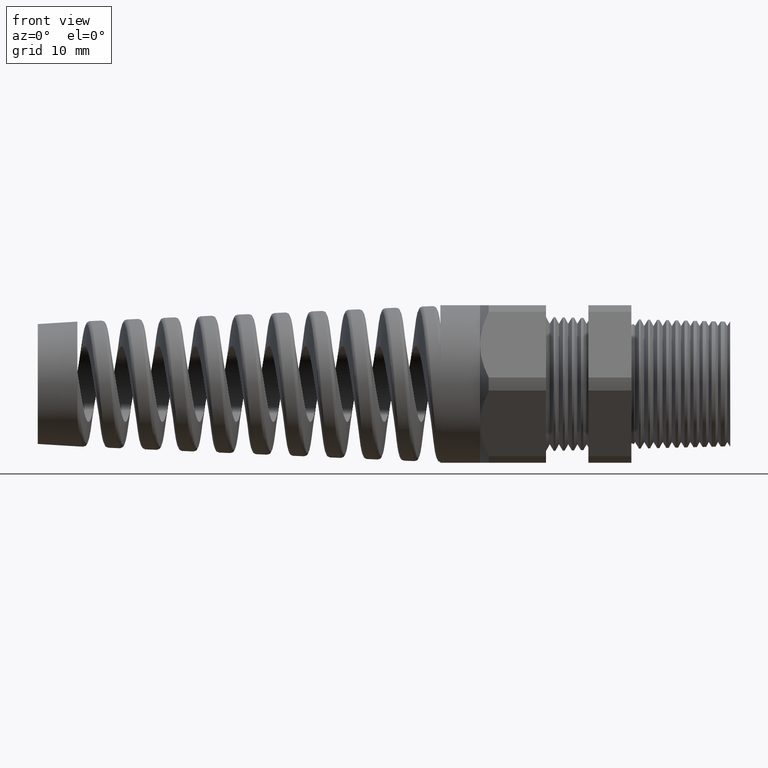
[diagram: clean part render]
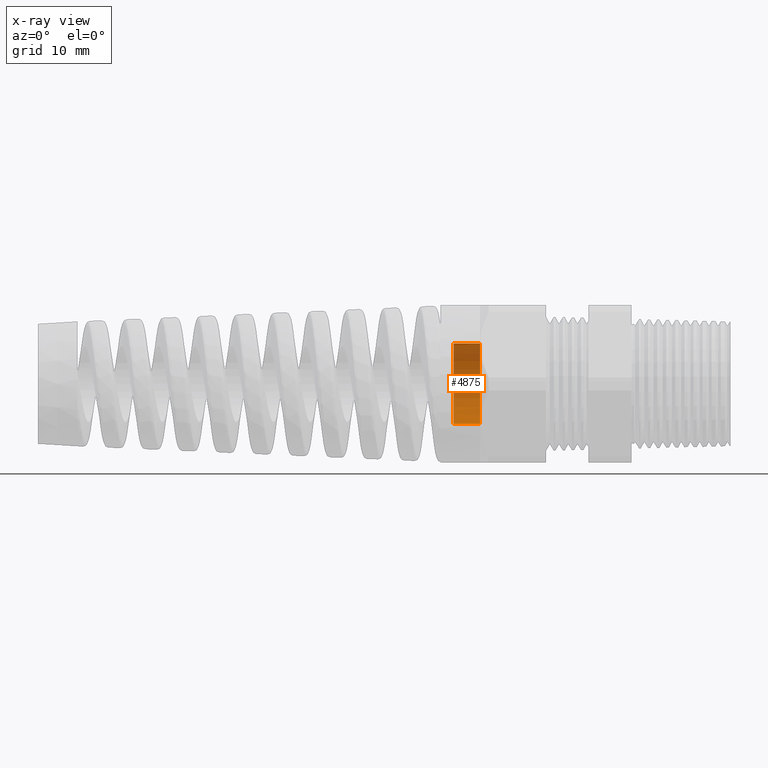
[diagram: x-ray — body ghosted, one internal face saturated and labeled with its STEP entity id]
A machine part, front view, then the same camera in x-ray: the body is ghosted and one INTERNAL B-rep face — a face not visible from any outside direction — is saturated and labeled: STEP entity #4875.
In plain terms, the highlighted cylindrical surface (partial cylindrical patch) has radius 6.1183 mm, axis along (1, 0, 0).
Its self-contained STEP definition (entity closure, byte-faithful):
#123 = CARTESIAN_POINT ( 'NONE',  ( -1.369999999999999900, 0.0000000000000000000, -0.2408786250720556800 ) ) ;
#124 = DIRECTION ( 'NONE',  ( 1.000000000000000000, 0.0000000000000000000, 0.0000000000000000000 ) ) ;
#125 = VECTOR ( 'NONE', #124, 39.37007874015748100 ) ;
#126 = CARTESIAN_POINT ( 'NONE',  ( -1.448820353894546600, 0.0000000000000000000, -0.2408786250720556800 ) ) ;
#127 = LINE ( 'NONE', #126, #125 ) ;
#129 = CARTESIAN_POINT ( 'NONE',  ( -1.212519685039370000, 0.0000000000000000000, -0.2408786250720556800 ) ) ;
#209 = CARTESIAN_POINT ( 'NONE',  ( -1.212519685039370000, 2.949912371775083200E-017, 0.2408786250720556800 ) ) ;
#473 = DIRECTION ( 'NONE',  ( 1.000000000000000000, 0.0000000000000000000, 0.0000000000000000000 ) ) ;
#474 = VECTOR ( 'NONE', #473, 39.37007874015748100 ) ;
#475 = CARTESIAN_POINT ( 'NONE',  ( -1.448820353894546600, 2.949912371775083200E-017, 0.2408786250720556800 ) ) ;
#476 = LINE ( 'NONE', #475, #474 ) ;
#478 = CARTESIAN_POINT ( 'NONE',  ( -1.369999999999999900, 2.949912371775083200E-017, 0.2408786250720556800 ) ) ;
#1758 = EDGE_CURVE ( 'NONE', #5173, #5127, #4732, .T. ) ;
#4724 = DIRECTION ( 'NONE',  ( 0.0000000000000000000, 0.0000000000000000000, 1.000000000000000000 ) ) ;
#4725 = DIRECTION ( 'NONE',  ( 1.000000000000000000, 0.0000000000000000000, 0.0000000000000000000 ) ) ;
#4726 = CARTESIAN_POINT ( 'NONE',  ( -1.212519685039370000, 0.0000000000000000000, 0.0000000000000000000 ) ) ;
#4727 = AXIS2_PLACEMENT_3D ( 'NONE', #4726, #4725, #4724 ) ;
#4732 = CIRCLE ( 'NONE', #4727, 0.2408786250720556800 ) ;
#4875 = ADVANCED_FACE ( 'NONE', ( #16771 ), #16765, .F. ) ;
#4876 = EDGE_LOOP ( 'NONE', ( #4877, #4878, #4880, #4881 ) ) ;
#4877 = ORIENTED_EDGE ( 'NONE', *, *, #5210, .F. ) ;
#4878 = ORIENTED_EDGE ( 'NONE', *, *, #4879, .T. ) ;
#4879 = EDGE_CURVE ( 'NONE', #5208, #5176, #16759, .T. ) ;
#4880 = ORIENTED_EDGE ( 'NONE', *, *, #5175, .T. ) ;
#4881 = ORIENTED_EDGE ( 'NONE', *, *, #1758, .T. ) ;
#5127 = VERTEX_POINT ( 'NONE', #209 ) ;
#5173 = VERTEX_POINT ( 'NONE', #129 ) ;
#5175 = EDGE_CURVE ( 'NONE', #5176, #5173, #127, .T. ) ;
#5176 = VERTEX_POINT ( 'NONE', #123 ) ;
#5208 = VERTEX_POINT ( 'NONE', #478 ) ;
#5210 = EDGE_CURVE ( 'NONE', #5208, #5127, #476, .T. ) ;
#16756 = DIRECTION ( 'NONE',  ( 0.0000000000000000000, 0.0000000000000000000, -1.000000000000000000 ) ) ;
#16757 = DIRECTION ( 'NONE',  ( -1.000000000000000000, 0.0000000000000000000, 0.0000000000000000000 ) ) ;
#16758 = AXIS2_PLACEMENT_3D ( 'NONE', #16764, #16757, #16756 ) ;
#16759 = CIRCLE ( 'NONE', #16758, 0.2408786250720556800 ) ;
#16760 = DIRECTION ( 'NONE',  ( 0.0000000000000000000, 0.0000000000000000000, -1.000000000000000000 ) ) ;
#16761 = DIRECTION ( 'NONE',  ( 1.000000000000000000, 0.0000000000000000000, 0.0000000000000000000 ) ) ;
#16762 = CARTESIAN_POINT ( 'NONE',  ( -1.448820353894546600, 0.0000000000000000000, 0.0000000000000000000 ) ) ;
#16763 = AXIS2_PLACEMENT_3D ( 'NONE', #16762, #16761, #16760 ) ;
#16764 = CARTESIAN_POINT ( 'NONE',  ( -1.369999999999999900, 0.0000000000000000000, 0.0000000000000000000 ) ) ;
#16765 = CYLINDRICAL_SURFACE ( 'NONE', #16763, 0.2408786250720556800 ) ;
#16771 = FACE_OUTER_BOUND ( 'NONE', #4876, .T. ) ;